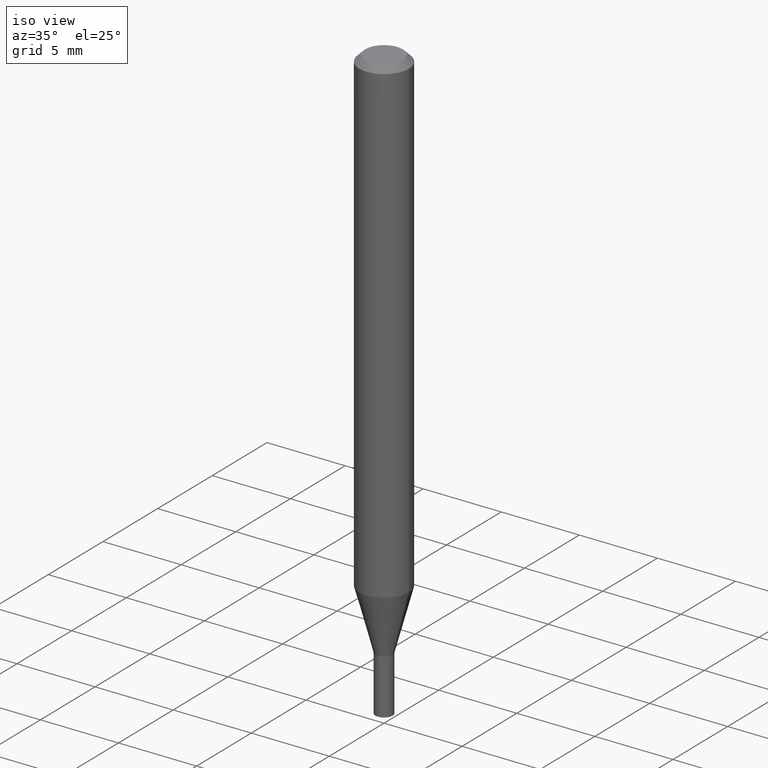
[diagram: clean part render]
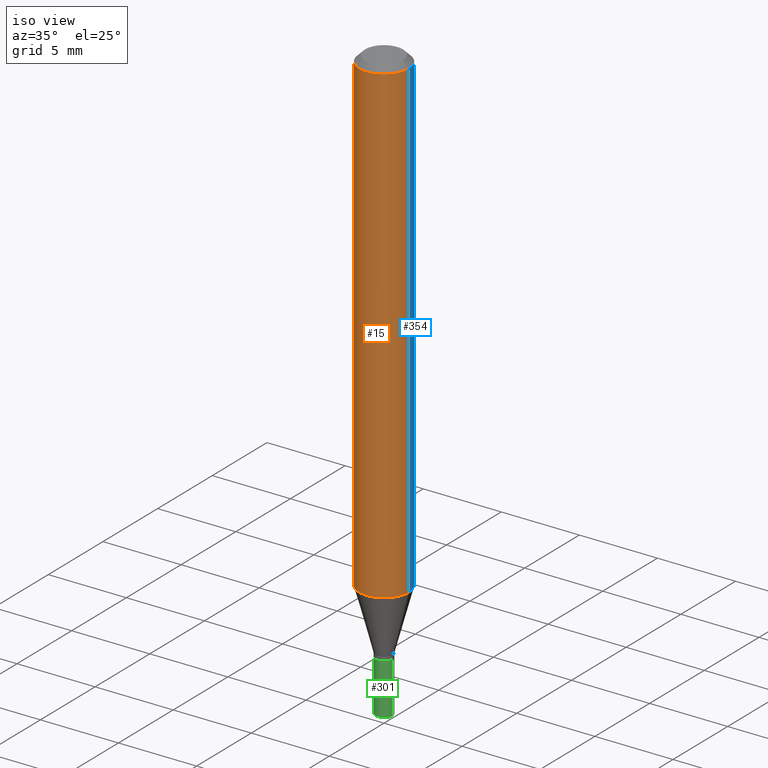
[diagram: same view with three faces highlighted in distinct colors, each labeled with its STEP entity id]
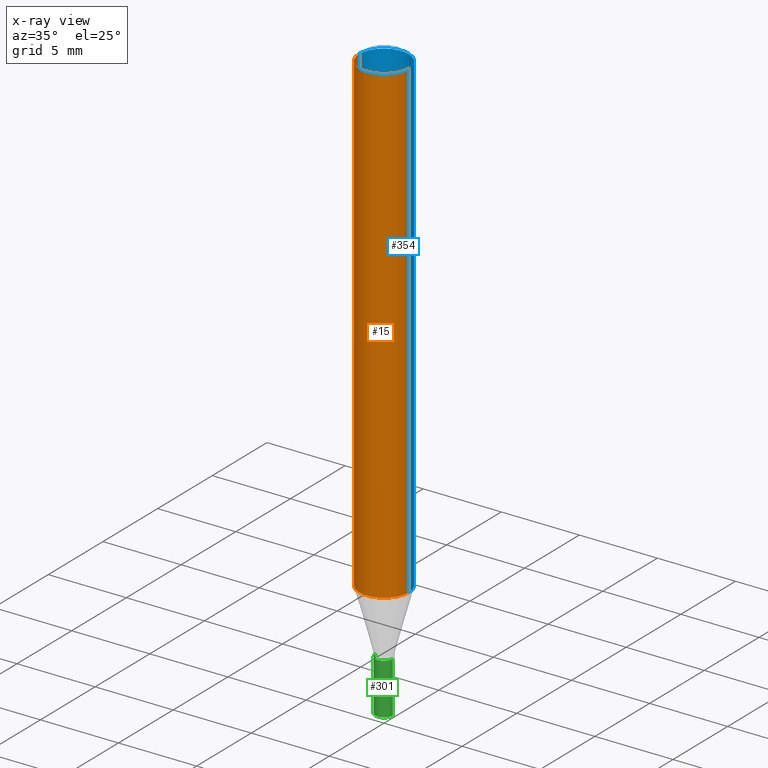
[diagram: x-ray of the same camera — body ghosted, the three highlighted faces saturated]
A machine part, iso view with three faces highlighted in distinct colors.
The next image is the same camera in x-ray (body ghosted, the three faces saturated) — at least one of them is partly hidden behind the body in this view.
Their STEP definitions:

[orange] entity #15 — the highlighted cylindrical surface (edge-blend (fillet) strip) has radius 1.5875 mm, axis along (-0, 0, 1).
#5 = CYLINDRICAL_SURFACE ( 'NONE', #435, 0.06250000000000000000 ) ;
#12 = EDGE_CURVE ( 'NONE', #328, #29, #246, .T. ) ;
#15 = ADVANCED_FACE ( 'NONE', ( #45 ), #5, .T. ) ;
#29 = VERTEX_POINT ( 'NONE', #80 ) ;
#39 = DIRECTION ( 'NONE',  ( 1.000000000000000000, -6.982962677686266711E-15, 4.876176775795935793E-29 ) ) ;
#45 = FACE_OUTER_BOUND ( 'NONE', #74, .T. ) ;
#47 = VECTOR ( 'NONE', #298, 39.37007874015748143 ) ;
#57 = VECTOR ( 'NONE', #200, 39.37007874015748143 ) ;
#66 = ORIENTED_EDGE ( 'NONE', *, *, #204, .T. ) ;
#74 = EDGE_LOOP ( 'NONE', ( #174, #241, #66, #352 ) ) ;
#80 = CARTESIAN_POINT ( 'NONE',  ( -0.06250000000000000000, -1.690927043394076990E-15, -0.01499999999999999944 ) ) ;
#108 = DIRECTION ( 'NONE',  ( -2.445468806185136597E-29, 3.491481338843145583E-15, 1.000000000000000000 ) ) ;
#115 = DIRECTION ( 'NONE',  ( 1.000000000000000000, -6.982962677686262766E-15, 0.000000000000000000 ) ) ;
#116 = AXIS2_PLACEMENT_3D ( 'NONE', #258, #265, #214 ) ;
#130 = VERTEX_POINT ( 'NONE', #348 ) ;
#134 = AXIS2_PLACEMENT_3D ( 'NONE', #342, #444, #115 ) ;
#151 = CARTESIAN_POINT ( 'NONE',  ( 0.06250000000000000000, -4.364351673553916694E-16, 3.047610484872459871E-30 ) ) ;
#163 = VERTEX_POINT ( 'NONE', #168 ) ;
#168 = CARTESIAN_POINT ( 'NONE',  ( 0.06249999999999999306, -4.654095453761022619E-15, -1.207985916889676270 ) ) ;
#174 = ORIENTED_EDGE ( 'NONE', *, *, #12, .F. ) ;
#192 = EDGE_CURVE ( 'NONE', #328, #163, #254, .T. ) ;
#200 = DIRECTION ( 'NONE',  ( -2.445468806185136877E-29, 3.491481338843145188E-15, 1.000000000000000000 ) ) ;
#204 = EDGE_CURVE ( 'NONE', #163, #130, #340, .T. ) ;
#214 = DIRECTION ( 'NONE',  ( 1.000000000000000000, -6.982962677686266711E-15, 0.000000000000000000 ) ) ;
#218 = CARTESIAN_POINT ( 'NONE',  ( -0.06249999999999999306, -3.773571076555568334E-15, -1.207985916889676270 ) ) ;
#224 = CARTESIAN_POINT ( 'NONE',  ( 0.000000000000000000, 0.000000000000000000, 0.000000000000000000 ) ) ;
#241 = ORIENTED_EDGE ( 'NONE', *, *, #192, .T. ) ;
#246 = LINE ( 'NONE', #394, #57 ) ;
#254 = CIRCLE ( 'NONE', #134, 0.06250000000000000000 ) ;
#258 = CARTESIAN_POINT ( 'NONE',  ( 3.668203209277705088E-31, -5.237222008264718399E-17, -0.01499999999999999944 ) ) ;
#265 = DIRECTION ( 'NONE',  ( -2.445468806185136597E-29, 3.491481338843145583E-15, 1.000000000000000000 ) ) ;
#298 = DIRECTION ( 'NONE',  ( -2.445468806185136877E-29, 3.491481338843145188E-15, 1.000000000000000000 ) ) ;
#324 = EDGE_CURVE ( 'NONE', #29, #130, #383, .T. ) ;
#328 = VERTEX_POINT ( 'NONE', #218 ) ;
#340 = LINE ( 'NONE', #151, #47 ) ;
#342 = CARTESIAN_POINT ( 'NONE',  ( 2.954091878064654281E-29, -4.217660286405631739E-15, -1.207985916889676270 ) ) ;
#348 = CARTESIAN_POINT ( 'NONE',  ( 0.06250000000000000000, -4.888073874380388472E-16, -0.01499999999999999944 ) ) ;
#352 = ORIENTED_EDGE ( 'NONE', *, *, #324, .F. ) ;
#383 = CIRCLE ( 'NONE', #116, 0.06250000000000000000 ) ;
#394 = CARTESIAN_POINT ( 'NONE',  ( -0.06250000000000000000, 4.440892098500626162E-16, -3.074334431409316114E-30 ) ) ;
#435 = AXIS2_PLACEMENT_3D ( 'NONE', #224, #108, #39 ) ;
#444 = DIRECTION ( 'NONE',  ( -2.445468806185136597E-29, 3.491481338843145583E-15, 1.000000000000000000 ) ) ;

[blue] entity #354 — the highlighted cylindrical surface (edge-blend (fillet) strip) has radius 1.5875 mm, axis along (-0, 0, 1).
#12 = EDGE_CURVE ( 'NONE', #328, #29, #246, .T. ) ;
#29 = VERTEX_POINT ( 'NONE', #80 ) ;
#30 = DIRECTION ( 'NONE',  ( -2.445468806185136597E-29, 3.491481338843145583E-15, 1.000000000000000000 ) ) ;
#47 = VECTOR ( 'NONE', #298, 39.37007874015748143 ) ;
#57 = VECTOR ( 'NONE', #200, 39.37007874015748143 ) ;
#70 = DIRECTION ( 'NONE',  ( 1.000000000000000000, -6.982962677686266711E-15, 4.876176775795935793E-29 ) ) ;
#80 = CARTESIAN_POINT ( 'NONE',  ( -0.06250000000000000000, -1.690927043394076990E-15, -0.01499999999999999944 ) ) ;
#101 = CARTESIAN_POINT ( 'NONE',  ( 3.668203209277705088E-31, -5.237222008264718399E-17, -0.01499999999999999944 ) ) ;
#129 = CARTESIAN_POINT ( 'NONE',  ( 0.000000000000000000, 0.000000000000000000, 0.000000000000000000 ) ) ;
#130 = VERTEX_POINT ( 'NONE', #348 ) ;
#151 = CARTESIAN_POINT ( 'NONE',  ( 0.06250000000000000000, -4.364351673553916694E-16, 3.047610484872459871E-30 ) ) ;
#156 = AXIS2_PLACEMENT_3D ( 'NONE', #379, #368, #157 ) ;
#157 = DIRECTION ( 'NONE',  ( 1.000000000000000000, -6.982962677686262766E-15, 0.000000000000000000 ) ) ;
#163 = VERTEX_POINT ( 'NONE', #168 ) ;
#168 = CARTESIAN_POINT ( 'NONE',  ( 0.06249999999999999306, -4.654095453761022619E-15, -1.207985916889676270 ) ) ;
#169 = EDGE_LOOP ( 'NONE', ( #454, #173, #250, #459 ) ) ;
#173 = ORIENTED_EDGE ( 'NONE', *, *, #12, .T. ) ;
#197 = DIRECTION ( 'NONE',  ( -2.445468806185136597E-29, 3.491481338843145583E-15, 1.000000000000000000 ) ) ;
#200 = DIRECTION ( 'NONE',  ( -2.445468806185136877E-29, 3.491481338843145188E-15, 1.000000000000000000 ) ) ;
#204 = EDGE_CURVE ( 'NONE', #163, #130, #340, .T. ) ;
#218 = CARTESIAN_POINT ( 'NONE',  ( -0.06249999999999999306, -3.773571076555568334E-15, -1.207985916889676270 ) ) ;
#246 = LINE ( 'NONE', #394, #57 ) ;
#249 = DIRECTION ( 'NONE',  ( 1.000000000000000000, -6.982962677686266711E-15, 0.000000000000000000 ) ) ;
#250 = ORIENTED_EDGE ( 'NONE', *, *, #372, .F. ) ;
#270 = FACE_OUTER_BOUND ( 'NONE', #169, .T. ) ;
#275 = CIRCLE ( 'NONE', #156, 0.06250000000000000000 ) ;
#276 = EDGE_CURVE ( 'NONE', #163, #328, #275, .T. ) ;
#289 = AXIS2_PLACEMENT_3D ( 'NONE', #101, #30, #249 ) ;
#298 = DIRECTION ( 'NONE',  ( -2.445468806185136877E-29, 3.491481338843145188E-15, 1.000000000000000000 ) ) ;
#328 = VERTEX_POINT ( 'NONE', #218 ) ;
#340 = LINE ( 'NONE', #151, #47 ) ;
#348 = CARTESIAN_POINT ( 'NONE',  ( 0.06250000000000000000, -4.888073874380388472E-16, -0.01499999999999999944 ) ) ;
#350 = CYLINDRICAL_SURFACE ( 'NONE', #422, 0.06250000000000000000 ) ;
#354 = ADVANCED_FACE ( 'NONE', ( #270 ), #350, .T. ) ;
#368 = DIRECTION ( 'NONE',  ( -2.445468806185136597E-29, 3.491481338843145583E-15, 1.000000000000000000 ) ) ;
#372 = EDGE_CURVE ( 'NONE', #130, #29, #400, .T. ) ;
#379 = CARTESIAN_POINT ( 'NONE',  ( 2.954091878064654281E-29, -4.217660286405631739E-15, -1.207985916889676270 ) ) ;
#394 = CARTESIAN_POINT ( 'NONE',  ( -0.06250000000000000000, 4.440892098500626162E-16, -3.074334431409316114E-30 ) ) ;
#400 = CIRCLE ( 'NONE', #289, 0.06250000000000000000 ) ;
#422 = AXIS2_PLACEMENT_3D ( 'NONE', #129, #197, #70 ) ;
#454 = ORIENTED_EDGE ( 'NONE', *, *, #276, .T. ) ;
#459 = ORIENTED_EDGE ( 'NONE', *, *, #204, .F. ) ;

[green] entity #301 — the highlighted cylindrical surface (edge-blend (fillet) strip) has radius 0.5461 mm, axis along (-0, 0, 1).
#6 = DIRECTION ( 'NONE',  ( -2.445468806185136877E-29, 3.491481338843145188E-15, 1.000000000000000000 ) ) ;
#9 = VECTOR ( 'NONE', #33, 39.37007874015748143 ) ;
#17 = CARTESIAN_POINT ( 'NONE',  ( 0.02150000000000000175, -5.387355705834973006E-15, -1.500000000000000222 ) ) ;
#31 = EDGE_CURVE ( 'NONE', #135, #194, #326, .T. ) ;
#32 = VERTEX_POINT ( 'NONE', #118 ) ;
#33 = DIRECTION ( 'NONE',  ( -2.445468806185136877E-29, 3.491481338843145188E-15, 1.000000000000000000 ) ) ;
#36 = CARTESIAN_POINT ( 'NONE',  ( 0.000000000000000000, 0.000000000000000000, 0.000000000000000000 ) ) ;
#41 = LINE ( 'NONE', #374, #97 ) ;
#55 = CARTESIAN_POINT ( 'NONE',  ( -0.02150000000000000175, -4.859254773720913469E-15, -1.500000000000000222 ) ) ;
#65 = EDGE_LOOP ( 'NONE', ( #453, #256, #138, #71 ) ) ;
#71 = ORIENTED_EDGE ( 'NONE', *, *, #131, .F. ) ;
#73 = LINE ( 'NONE', #397, #9 ) ;
#91 = AXIS2_PLACEMENT_3D ( 'NONE', #36, #402, #103 ) ;
#97 = VECTOR ( 'NONE', #6, 39.37007874015748143 ) ;
#103 = DIRECTION ( 'NONE',  ( 1.000000000000000000, -6.982962677686265922E-15, 4.876176775795935232E-29 ) ) ;
#118 = CARTESIAN_POINT ( 'NONE',  ( 0.02150000000000000175, -4.936954613124208519E-15, -1.371000000000000218 ) ) ;
#131 = EDGE_CURVE ( 'NONE', #323, #32, #317, .T. ) ;
#135 = VERTEX_POINT ( 'NONE', #55 ) ;
#138 = ORIENTED_EDGE ( 'NONE', *, *, #248, .T. ) ;
#142 = CARTESIAN_POINT ( 'NONE',  ( -0.02150000000000000175, -4.859254773720913469E-15, -1.371000000000000218 ) ) ;
#145 = CYLINDRICAL_SURFACE ( 'NONE', #91, 0.02150000000000000175 ) ;
#165 = CARTESIAN_POINT ( 'NONE',  ( 3.352737733279822651E-29, -4.786820915553953690E-15, -1.371000000000000218 ) ) ;
#176 = AXIS2_PLACEMENT_3D ( 'NONE', #165, #243, #389 ) ;
#194 = VERTEX_POINT ( 'NONE', #17 ) ;
#237 = DIRECTION ( 'NONE',  ( -2.445468806185136597E-29, 3.491481338843145583E-15, 1.000000000000000000 ) ) ;
#243 = DIRECTION ( 'NONE',  ( -2.445468806185136597E-29, 3.491481338843145583E-15, 1.000000000000000000 ) ) ;
#248 = EDGE_CURVE ( 'NONE', #194, #32, #41, .T. ) ;
#256 = ORIENTED_EDGE ( 'NONE', *, *, #31, .T. ) ;
#285 = DIRECTION ( 'NONE',  ( 1.000000000000000000, -6.982962677686265133E-15, 0.000000000000000000 ) ) ;
#301 = ADVANCED_FACE ( 'NONE', ( #336 ), #145, .T. ) ;
#317 = CIRCLE ( 'NONE', #176, 0.02150000000000000175 ) ;
#323 = VERTEX_POINT ( 'NONE', #142 ) ;
#326 = CIRCLE ( 'NONE', #457, 0.02150000000000000175 ) ;
#336 = FACE_OUTER_BOUND ( 'NONE', #65, .T. ) ;
#374 = CARTESIAN_POINT ( 'NONE',  ( 0.02150000000000000175, -1.501336975702547303E-16, 1.048378006796126202E-30 ) ) ;
#389 = DIRECTION ( 'NONE',  ( 1.000000000000000000, -6.982962677686265133E-15, 0.000000000000000000 ) ) ;
#390 = EDGE_CURVE ( 'NONE', #135, #323, #73, .T. ) ;
#397 = CARTESIAN_POINT ( 'NONE',  ( -0.02150000000000000175, 1.527666881884215524E-16, -1.057571044404804700E-30 ) ) ;
#402 = DIRECTION ( 'NONE',  ( -2.445468806185136597E-29, 3.491481338843145583E-15, 1.000000000000000000 ) ) ;
#421 = CARTESIAN_POINT ( 'NONE',  ( 3.668203209277704895E-29, -5.237222008264718177E-15, -1.500000000000000222 ) ) ;
#453 = ORIENTED_EDGE ( 'NONE', *, *, #390, .F. ) ;
#457 = AXIS2_PLACEMENT_3D ( 'NONE', #421, #237, #285 ) ;